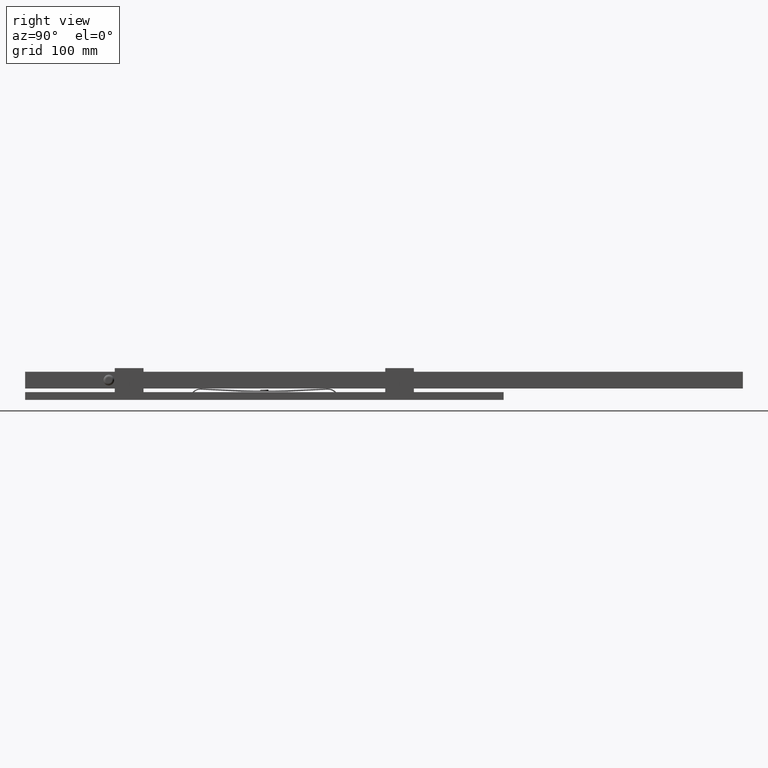
[diagram: clean part render]
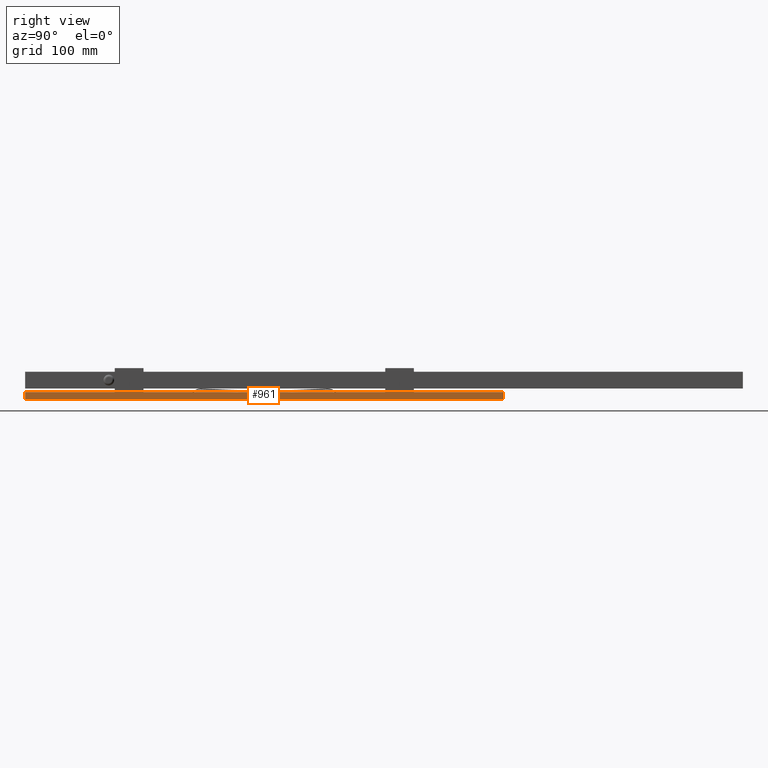
[diagram: same view with one face highlighted and labeled with its STEP entity id]
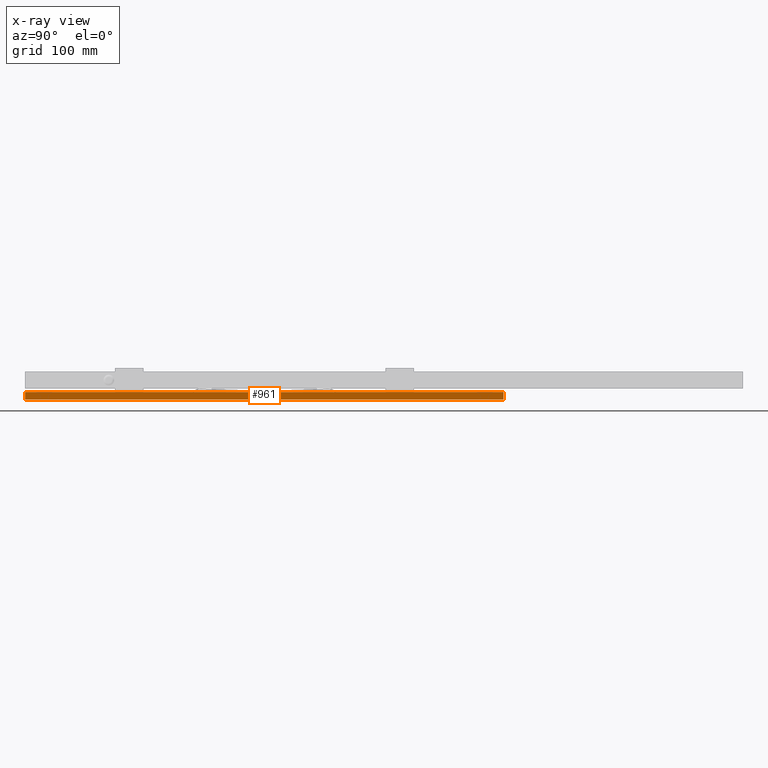
[diagram: x-ray of the same camera — body ghosted, the highlighted face saturated]
A machine part, right view. The second image highlights one B-rep face of the part: STEP entity #961.
The next image is the same camera in x-ray: the body ghosted, the highlighted face saturated — about 0% of this face is hidden behind the body in this view.
In plain terms, the highlighted planar face has unit normal (-1, -0, 0).
Its self-contained STEP definition (entity closure, byte-faithful):
#12 = CARTESIAN_POINT ( 'NONE',  ( 12.49999999999995559, 200.0000000000000853, 6.500000000000000000 ) ) ;
#73 = CARTESIAN_POINT ( 'NONE',  ( 12.50000000000001066, -199.9999999999999716, 0.000000000000000000 ) ) ;
#604 = VECTOR ( 'NONE', #1277, 1000.000000000000000 ) ;
#961 = ADVANCED_FACE ( 'NONE', ( #9439 ), #7032, .F. ) ;
#1100 = LINE ( 'NONE', #4387, #8146 ) ;
#1179 = DIRECTION ( 'NONE',  ( -0.000000000000000000, -0.000000000000000000, -1.000000000000000000 ) ) ;
#1214 = DIRECTION ( 'NONE',  ( -1.000000000000000000, -1.387778780781445676E-16, 0.000000000000000000 ) ) ;
#1239 = VERTEX_POINT ( 'NONE', #11098 ) ;
#1277 = DIRECTION ( 'NONE',  ( -1.387778780781445429E-16, 1.000000000000000000, -0.000000000000000000 ) ) ;
#1599 = DIRECTION ( 'NONE',  ( -0.000000000000000000, -0.000000000000000000, -1.000000000000000000 ) ) ;
#1611 = CARTESIAN_POINT ( 'NONE',  ( 12.50000000000001066, -199.9999999999999716, 6.500000000000000000 ) ) ;
#4339 = CARTESIAN_POINT ( 'NONE',  ( 12.49999999999995559, 200.0000000000000853, 6.500000000000000000 ) ) ;
#4387 = CARTESIAN_POINT ( 'NONE',  ( 12.49999999999995559, 200.0000000000000853, 6.500000000000000000 ) ) ;
#4689 = ORIENTED_EDGE ( 'NONE', *, *, #6904, .F. ) ;
#5966 = CARTESIAN_POINT ( 'NONE',  ( 12.49999999999995559, 200.0000000000000853, 6.500000000000000000 ) ) ;
#6282 = ORIENTED_EDGE ( 'NONE', *, *, #10312, .F. ) ;
#6403 = VERTEX_POINT ( 'NONE', #10540 ) ;
#6566 = EDGE_LOOP ( 'NONE', ( #10999, #4689, #6282, #8742 ) ) ;
#6904 = EDGE_CURVE ( 'NONE', #10718, #6403, #1100, .T. ) ;
#7032 = PLANE ( 'NONE',  #9282 ) ;
#7098 = CARTESIAN_POINT ( 'NONE',  ( 12.49999999999995559, 200.0000000000000853, 0.000000000000000000 ) ) ;
#7679 = EDGE_CURVE ( 'NONE', #1239, #11567, #8731, .T. ) ;
#7784 = LINE ( 'NONE', #4339, #12148 ) ;
#7818 = DIRECTION ( 'NONE',  ( 1.387778780781445676E-16, -1.000000000000000000, 0.000000000000000000 ) ) ;
#8146 = VECTOR ( 'NONE', #1599, 1000.000000000000000 ) ;
#8279 = VECTOR ( 'NONE', #1179, 1000.000000000000000 ) ;
#8731 = LINE ( 'NONE', #1611, #8279 ) ;
#8742 = ORIENTED_EDGE ( 'NONE', *, *, #7679, .T. ) ;
#9095 = DIRECTION ( 'NONE',  ( -1.387778780781445429E-16, 1.000000000000000000, -0.000000000000000000 ) ) ;
#9127 = EDGE_CURVE ( 'NONE', #11567, #6403, #11094, .T. ) ;
#9282 = AXIS2_PLACEMENT_3D ( 'NONE', #5966, #1214, #7818 ) ;
#9439 = FACE_OUTER_BOUND ( 'NONE', #6566, .T. ) ;
#10312 = EDGE_CURVE ( 'NONE', #1239, #10718, #7784, .T. ) ;
#10540 = CARTESIAN_POINT ( 'NONE',  ( 12.49999999999995559, 200.0000000000000853, 0.000000000000000000 ) ) ;
#10718 = VERTEX_POINT ( 'NONE', #12 ) ;
#10999 = ORIENTED_EDGE ( 'NONE', *, *, #9127, .T. ) ;
#11094 = LINE ( 'NONE', #7098, #604 ) ;
#11098 = CARTESIAN_POINT ( 'NONE',  ( 12.50000000000001066, -199.9999999999999716, 6.500000000000000000 ) ) ;
#11567 = VERTEX_POINT ( 'NONE', #73 ) ;
#12148 = VECTOR ( 'NONE', #9095, 1000.000000000000000 ) ;